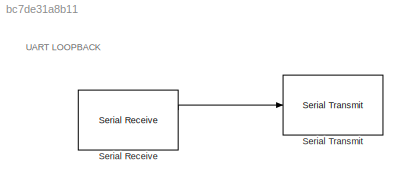
MODEL slx_bc7de31a8b11
KIND model
CONFIG AbsTol = auto
CONFIG EnableMultiTasking = on
CONFIG FixedStep = auto
CONFIG MaxStep = auto
CONFIG MinStep = auto
CONFIG RelTol = 1e-3
CONFIG SampleTimeConstraint = Unconstrained
CONFIG Solver = FixedStepDiscrete
CONFIG SolverName = FixedStepDiscrete
CONFIG StartTime = 0.0
CONFIG StopTime = 10.0
BLOCK [Reference] Serial Receive  REF=frdmkl25zlib/Serial Receive
  Ports = [0, 2]
  SourceBlock = frdmkl25zlib/Serial Receive
  SourceType = Serial Receive
BLOCK [Reference] Serial Transmit  REF=frdmkl25zlib/Serial Transmit
  Ports = [1]
  SourceBlock = frdmkl25zlib/Serial Transmit
  SourceType = Serial Transmit
ANNOTATION (root): UART LOOPBACK
LINE Serial Receive:1 -> Serial Transmit:1
